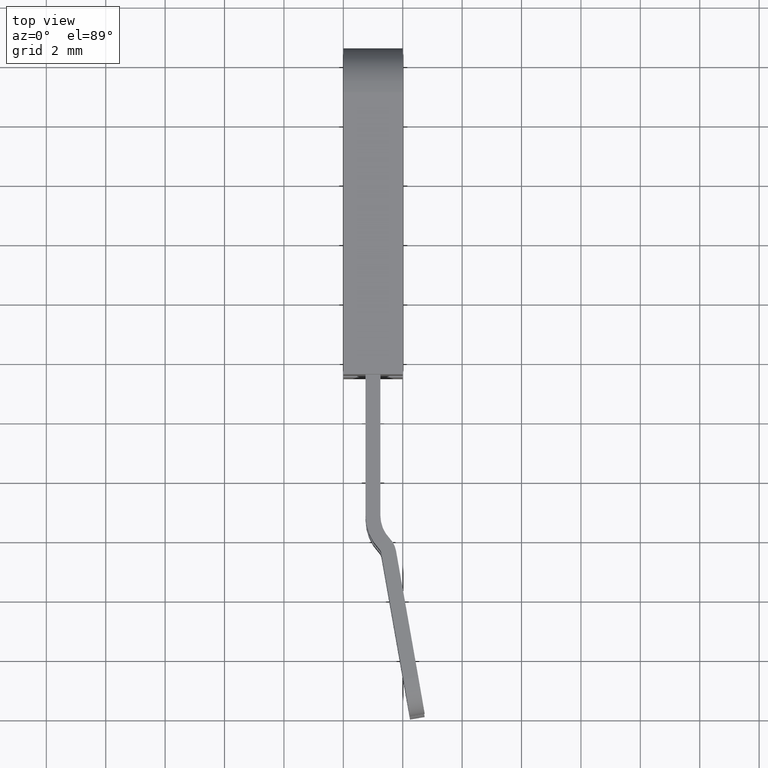
[diagram: clean part render]
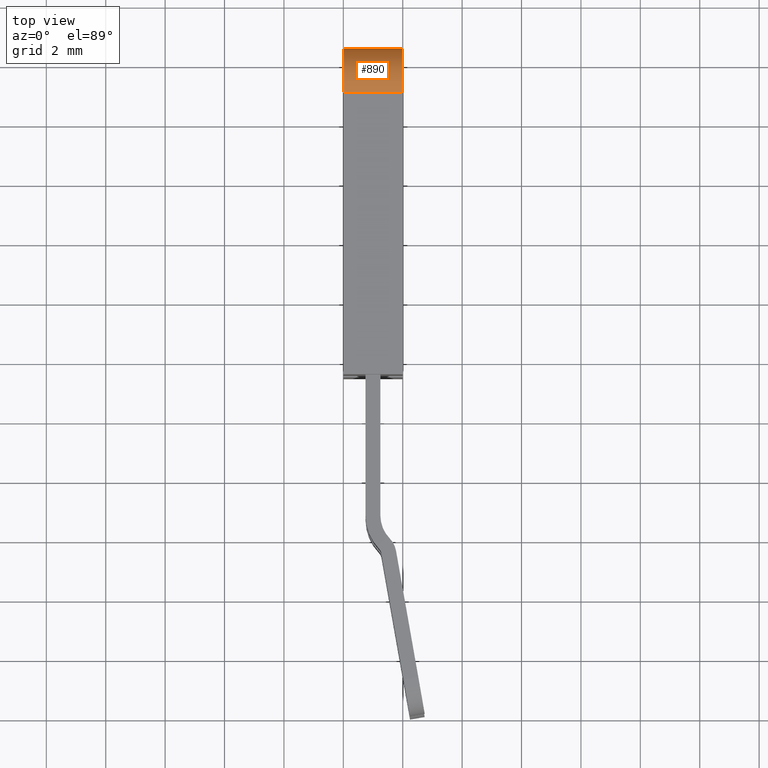
[diagram: same view with one face highlighted and labeled with its STEP entity id]
A machine part, top view. The second image highlights one B-rep face of the part: STEP entity #890.
In plain terms, the highlighted cylindrical surface (partial cylindrical patch) has radius 1.5 mm, axis along (1, 0, 0).
Its self-contained STEP definition (entity closure, byte-faithful):
#480=CARTESIAN_POINT('',(-25.1051720133759,0.454193788197522,0.75));
#490=DIRECTION('',(0.,0.,1.));
#500=DIRECTION('',(1.,0.,0.));
#510=AXIS2_PLACEMENT_3D('',#480,#490,#500);
#520=CYLINDRICAL_SURFACE('',#510,1.5);
#530=CARTESIAN_POINT('',(-25.1051720133759,0.454193788197522,0.75));
#540=DIRECTION('',(0.,0.,1.));
#550=DIRECTION('',(1.,0.,0.));
#560=AXIS2_PLACEMENT_3D('',#530,#540,#550);
#570=CIRCLE('',#560,1.5);
#580=CARTESIAN_POINT('',(-25.1051720133759,1.95419378819752,0.75));
#590=VERTEX_POINT('',#580);
#600=CARTESIAN_POINT('',(-26.6051720133759,0.454193788197522,0.75));
#610=VERTEX_POINT('',#600);
#620=EDGE_CURVE('',#590,#610,#570,.T.);
#630=ORIENTED_EDGE('',*,*,#620,.F.);
#640=CARTESIAN_POINT('',(-26.6051720133759,0.454193788197522,-1.250003))
;
#650=DIRECTION('',(0.,0.,1.));
#660=VECTOR('',#650,1.);
#670=LINE('',#640,#660);
#680=CARTESIAN_POINT('',(-26.6051720133759,0.454193788197522,-1.25));
#690=VERTEX_POINT('',#680);
#700=EDGE_CURVE('',#690,#610,#670,.T.);
#710=ORIENTED_EDGE('',*,*,#700,.T.);
#720=CARTESIAN_POINT('',(-25.1051720133759,0.454193788197522,-1.25));
#730=DIRECTION('',(0.,0.,1.));
#740=DIRECTION('',(1.,0.,0.));
#750=AXIS2_PLACEMENT_3D('',#720,#730,#740);
#760=CIRCLE('',#750,1.5);
#770=CARTESIAN_POINT('',(-25.1051720133759,1.95419378819752,-1.25));
#780=VERTEX_POINT('',#770);
#790=EDGE_CURVE('',#780,#690,#760,.T.);
#800=ORIENTED_EDGE('',*,*,#790,.T.);
#810=CARTESIAN_POINT('',(-25.1051720133759,1.95419378819752,-1.250003));
#820=DIRECTION('',(0.,0.,1.));
#830=VECTOR('',#820,1.);
#840=LINE('',#810,#830);
#850=EDGE_CURVE('',#780,#590,#840,.T.);
#860=ORIENTED_EDGE('',*,*,#850,.F.);
#870=EDGE_LOOP('',(#860,#800,#710,#630));
#880=FACE_OUTER_BOUND('',#870,.T.);
#890=ADVANCED_FACE('',(#880),#520,.T.);